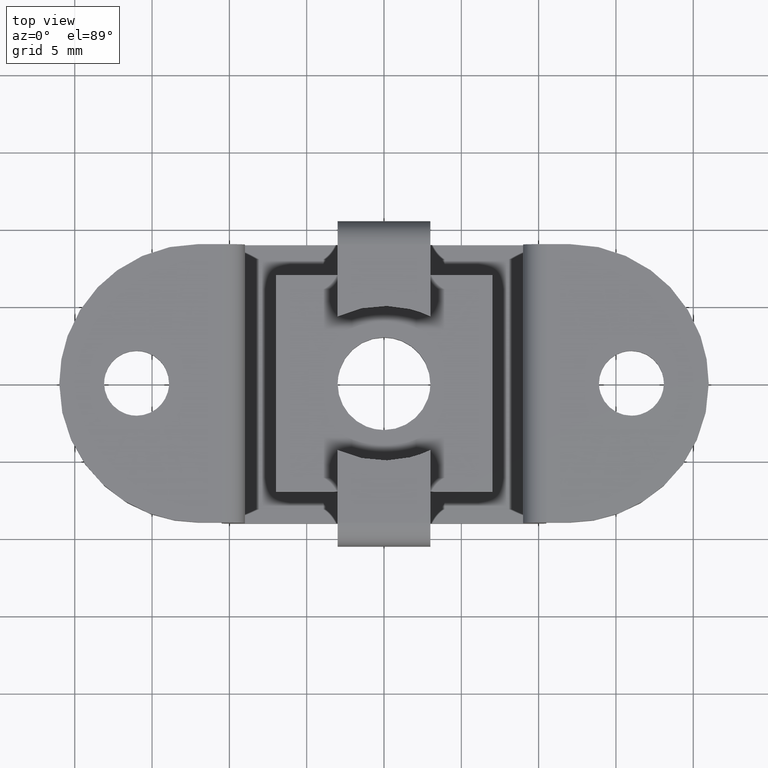
[diagram: clean part render]
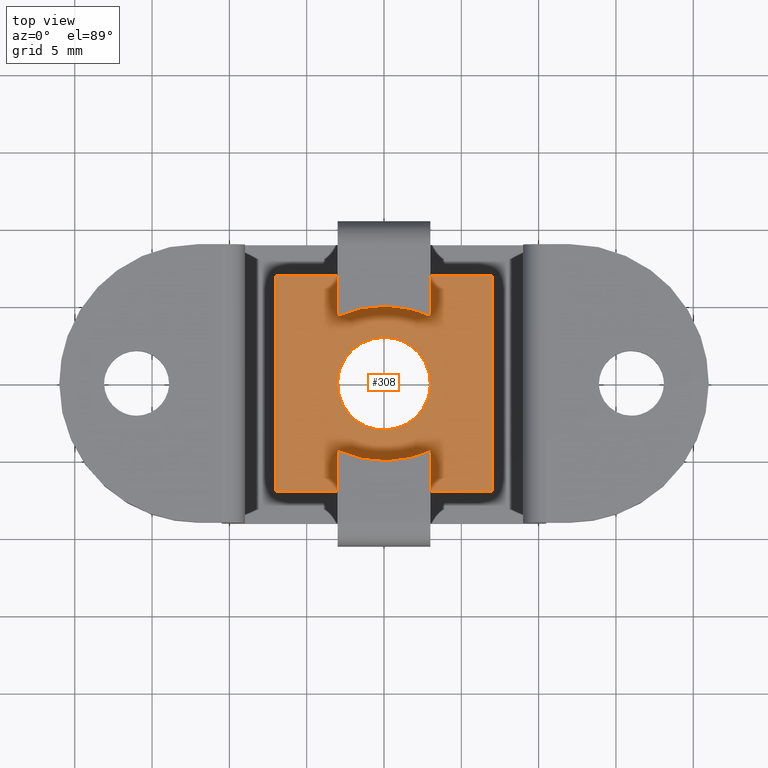
[diagram: same view with one face highlighted and labeled with its STEP entity id]
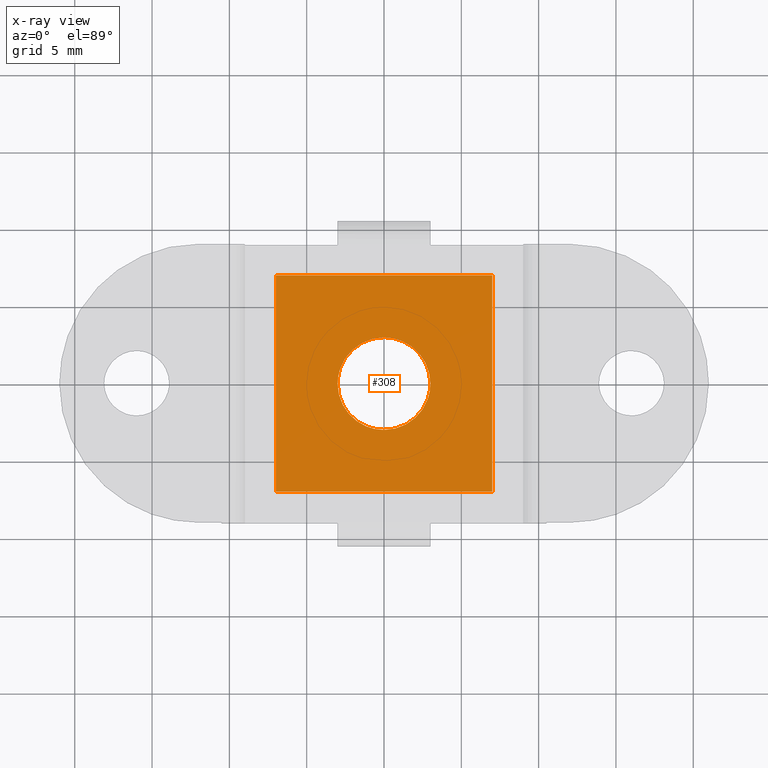
[diagram: x-ray of the same camera — body ghosted, the highlighted face saturated]
A machine part, top view. The second image highlights one B-rep face of the part: STEP entity #308.
The next image is the same camera in x-ray: the body ghosted, the highlighted face saturated — about 0% of this face is hidden behind the body in this view.
In plain terms, the highlighted face is a freeform B-spline surface patch.
Its self-contained STEP definition (entity closure, byte-faithful):
#66=CARTESIAN_POINT('',(2.026770673738997,-2.211832104469940,4.199999999999870));
#67=VERTEX_POINT('',#66);
#73=CARTESIAN_POINT('',(3.0,0.0,4.199999999999870));
#74=VERTEX_POINT('',#73);
#75=CARTESIAN_POINT('',(2.026770673738997,-2.211832104469940,4.199999999999870));
#76=CARTESIAN_POINT('',(2.246548624182865,-2.010645768216164,4.199999999999865));
#77=CARTESIAN_POINT('',(2.518152812161263,-1.674451300544950,4.199999999999877));
#78=CARTESIAN_POINT('',(2.780758964578015,-1.152662624657844,4.199999999999864));
#79=CARTESIAN_POINT('',(2.950293295594806,-0.647655790733557,4.199999999999887));
#80=CARTESIAN_POINT('',(3.000063753833211,-0.246125411382695,4.199999999999846));
#81=CARTESIAN_POINT('',(3.0,0.0,4.199999999999870));
#82=B_SPLINE_CURVE_WITH_KNOTS('',3,(#75,#76,#77,#78,#79,#80,#81),.UNSPECIFIED.,.F.,.U.,(4,1,1,1,4),(9.363800E-009,0.893809639567540,1.282412500389488,1.748750195845290,2.487111640527097),.UNSPECIFIED.);
#83=EDGE_CURVE('',#67,#74,#82,.T.);
#85=CARTESIAN_POINT('',(-0.000000416446229,2.999999999999971,4.199999999999870));
#86=VERTEX_POINT('',#85);
#87=CARTESIAN_POINT('',(3.0,0.0,4.199999999999870));
#88=CARTESIAN_POINT('',(3.000052161679656,0.233170577393643,4.199999999999885));
#89=CARTESIAN_POINT('',(2.962610221252406,0.552211790945944,4.199999999999847));
#90=CARTESIAN_POINT('',(2.818622930664131,1.060389815663407,4.199999999999884));
#91=CARTESIAN_POINT('',(2.620922839001387,1.499108840692765,4.199999999999854));
#92=CARTESIAN_POINT('',(2.241578056485838,2.030850346581844,4.199999999999864));
#93=CARTESIAN_POINT('',(1.762183616229968,2.460024253946070,4.199999999999879));
#94=CARTESIAN_POINT('',(1.211195198964196,2.763216449865619,4.199999999999872));
#95=CARTESIAN_POINT('',(0.638114643568960,2.952540357977808,4.199999999999858));
#96=CARTESIAN_POINT('',(0.233166685145393,3.000049320351720,4.199999999999891));
#97=CARTESIAN_POINT('',(-0.000000416446229,2.999999999999971,4.199999999999870));
#98=B_SPLINE_CURVE_WITH_KNOTS('',3,(#87,#88,#89,#90,#91,#92,#93,#94,#95,#96,#97),.UNSPECIFIED.,.F.,.U.,(4,1,1,1,1,1,1,1,4),(0.000000033856314,0.699497773477367,0.957207019893092,1.583080279433483,2.135320060540488,2.908443203026440,3.497497773849499,4.012924576036063,4.712418783343729),.UNSPECIFIED.);
#99=EDGE_CURVE('',#74,#86,#98,.T.);
#101=CARTESIAN_POINT('',(-2.026770673738987,2.211832104469929,4.199999999999870));
#102=VERTEX_POINT('',#101);
#103=CARTESIAN_POINT('',(-0.000000416446229,2.999999999999971,4.199999999999870));
#104=CARTESIAN_POINT('',(-0.231805332302560,3.000050320863364,4.199999999999865));
#105=CARTESIAN_POINT('',(-0.649027769406933,2.951393263278275,4.199999999999871));
#106=CARTESIAN_POINT('',(-1.167546804372048,2.776947983417856,4.199999999999871));
#107=CARTESIAN_POINT('',(-1.620564620239227,2.540518238409537,4.199999999999871));
#108=CARTESIAN_POINT('',(-1.881521462731787,2.344967288705484,4.199999999999870));
#109=CARTESIAN_POINT('',(-2.026770673738987,2.211832104469929,4.199999999999870));
#110=B_SPLINE_CURVE_WITH_KNOTS('',3,(#103,#104,#105,#106,#107,#108,#109),.UNSPECIFIED.,.F.,.U.,(4,1,1,1,4),(9.158697E-009,0.695408462811012,1.251734827025207,1.634209409400389,2.225306846812331),.UNSPECIFIED.);
#111=EDGE_CURVE('',#86,#102,#110,.T.);
#152=CARTESIAN_POINT('',(-3.0,0.0,4.199999999999870));
#153=VERTEX_POINT('',#152);
#154=CARTESIAN_POINT('',(-2.026770673738987,2.211832104469929,4.199999999999870));
#155=CARTESIAN_POINT('',(-2.170044202150618,2.080579104586365,4.199999999999873));
#156=CARTESIAN_POINT('',(-2.422244651416909,1.799775154717682,4.199999999999866));
#157=CARTESIAN_POINT('',(-2.684808948099136,1.365746756730664,4.199999999999879));
#158=CARTESIAN_POINT('',(-2.871711505952157,0.909250227431453,4.199999999999869));
#159=CARTESIAN_POINT('',(-2.976900936763788,0.466332212586939,4.199999999999882));
#160=CARTESIAN_POINT('',(-3.000002526672579,0.142488298733622,4.199999999999861));
#161=CARTESIAN_POINT('',(-3.0,0.0,4.199999999999870));
#162=B_SPLINE_CURVE_WITH_KNOTS('',3,(#154,#155,#156,#157,#158,#159,#160,#161),.UNSPECIFIED.,.F.,.U.,(4,1,1,1,1,4),(9.363851E-009,0.582916211744093,1.126979847266145,1.515582155250638,2.059641657035992,2.487111640527089),.UNSPECIFIED.);
#163=EDGE_CURVE('',#102,#153,#162,.T.);
#165=CARTESIAN_POINT('',(0.000000416446285,-2.999999999999971,4.199999999999870));
#166=VERTEX_POINT('',#165);
#167=CARTESIAN_POINT('',(-3.0,0.0,4.199999999999870));
#168=CARTESIAN_POINT('',(-3.000017090121876,-0.184077309546515,4.199999999999876));
#169=CARTESIAN_POINT('',(-2.963753870001362,-0.576771525672506,4.199999999999856));
#170=CARTESIAN_POINT('',(-2.795339557129723,-1.144584513793904,4.199999999999897));
#171=CARTESIAN_POINT('',(-2.533724428758085,-1.633947072904079,4.199999999999847));
#172=CARTESIAN_POINT('',(-2.177933080612154,-2.089909745810657,4.199999999999867));
#173=CARTESIAN_POINT('',(-1.740560016808188,-2.471901465935728,4.199999999999913));
#174=CARTESIAN_POINT('',(-1.243605394755055,-2.745375191932126,4.199999999999829));
#175=CARTESIAN_POINT('',(-0.674903867130292,-2.944937063206100,4.199999999999939));
#176=CARTESIAN_POINT('',(-0.269992055100033,-3.000101967453063,4.199999999999834));
#177=CARTESIAN_POINT('',(0.000000416446285,-2.999999999999971,4.199999999999870));
#178=B_SPLINE_CURVE_WITH_KNOTS('',3,(#167,#168,#169,#170,#171,#172,#173,#174,#175,#176,#177),.UNSPECIFIED.,.F.,.U.,(4,1,1,1,1,1,1,1,4),(0.000000033855061,0.552232916832345,1.178104888022424,1.767159346954734,2.208958015174996,2.908443203025962,3.497497773849176,3.902477172519704,4.712418783343773),.UNSPECIFIED.);
#179=EDGE_CURVE('',#153,#166,#178,.T.);
#181=CARTESIAN_POINT('',(0.000000416446285,-2.999999999999971,4.199999999999870));
#182=CARTESIAN_POINT('',(0.231807924293807,-3.000053747369285,4.199999999999885));
#183=CARTESIAN_POINT('',(0.567895146498087,-2.960838423065737,4.199999999999857));
#184=CARTESIAN_POINT('',(1.091536543859115,-2.808031022893360,4.199999999999879));
#185=CARTESIAN_POINT('',(1.555341545848188,-2.589437307046377,4.199999999999863));
#186=CARTESIAN_POINT('',(1.881518621572500,-2.344961360346443,4.199999999999873));
#187=CARTESIAN_POINT('',(2.026770673738997,-2.211832104469940,4.199999999999870));
#188=B_SPLINE_CURVE_WITH_KNOTS('',3,(#181,#182,#183,#184,#185,#186,#187),.UNSPECIFIED.,.F.,.U.,(4,1,1,1,4),(9.158646E-009,0.695408462810988,1.008347260629320,1.634209409400344,2.225306846812281),.UNSPECIFIED.);
#189=EDGE_CURVE('',#166,#67,#188,.T.);
#265=CARTESIAN_POINT('',(-7.699299972865286,7.699299972865286,4.199999999999905));
#266=CARTESIAN_POINT('',(7.699300348374547,7.699299972865286,4.199999999999905));
#267=CARTESIAN_POINT('',(-7.699299972865286,-7.699300348374547,4.199999999999905));
#268=CARTESIAN_POINT('',(7.699300348374547,-7.699300348374547,4.199999999999905));
#269=B_SPLINE_SURFACE_WITH_KNOTS('',1,1,((#265,#267),(#266,#268)),.UNSPECIFIED.,.F.,.F.,.U.,(2,2),(2,2),(0.0,15.398600321239829),(0.0,15.398600321239829),.UNSPECIFIED.);
#270=CARTESIAN_POINT('',(-7.0,7.0,4.199999999999870));
#271=VERTEX_POINT('',#270);
#272=CARTESIAN_POINT('',(7.0,7.0,4.199999999999870));
#273=VERTEX_POINT('',#272);
#274=CARTESIAN_POINT('',(-7.0,7.0,4.199999999999870));
#275=CARTESIAN_POINT('',(7.0,7.0,4.199999999999870));
#276=QUASI_UNIFORM_CURVE('',1,(#274,#275),.UNSPECIFIED.,.F.,.U.);
#277=EDGE_CURVE('',#271,#273,#276,.T.);
#278=ORIENTED_EDGE('',*,*,#277,.F.);
#279=CARTESIAN_POINT('',(-7.0,-7.0,4.199999999999870));
#280=VERTEX_POINT('',#279);
#281=CARTESIAN_POINT('',(-7.0,-7.0,4.199999999999870));
#282=CARTESIAN_POINT('',(-7.0,7.0,4.199999999999870));
#283=QUASI_UNIFORM_CURVE('',1,(#281,#282),.UNSPECIFIED.,.F.,.U.);
#284=EDGE_CURVE('',#280,#271,#283,.T.);
#285=ORIENTED_EDGE('',*,*,#284,.F.);
#286=CARTESIAN_POINT('',(7.0,-7.0,4.199999999999870));
#287=VERTEX_POINT('',#286);
#288=CARTESIAN_POINT('',(7.0,-7.0,4.199999999999870));
#289=CARTESIAN_POINT('',(-7.0,-7.0,4.199999999999870));
#290=QUASI_UNIFORM_CURVE('',1,(#288,#289),.UNSPECIFIED.,.F.,.U.);
#291=EDGE_CURVE('',#287,#280,#290,.T.);
#292=ORIENTED_EDGE('',*,*,#291,.F.);
#293=CARTESIAN_POINT('',(7.0,7.0,4.199999999999870));
#294=CARTESIAN_POINT('',(7.0,-7.0,4.199999999999870));
#295=QUASI_UNIFORM_CURVE('',1,(#293,#294),.UNSPECIFIED.,.F.,.U.);
#296=EDGE_CURVE('',#273,#287,#295,.T.);
#297=ORIENTED_EDGE('',*,*,#296,.F.);
#298=EDGE_LOOP('',(#278,#285,#292,#297));
#299=FACE_OUTER_BOUND('',#298,.T.);
#300=ORIENTED_EDGE('',*,*,#179,.F.);
#301=ORIENTED_EDGE('',*,*,#163,.F.);
#302=ORIENTED_EDGE('',*,*,#111,.F.);
#303=ORIENTED_EDGE('',*,*,#99,.F.);
#304=ORIENTED_EDGE('',*,*,#83,.F.);
#305=ORIENTED_EDGE('',*,*,#189,.F.);
#306=EDGE_LOOP('',(#300,#301,#302,#303,#304,#305));
#307=FACE_BOUND('',#306,.T.);
#308=ADVANCED_FACE('',(#299,#307),#269,.F.);